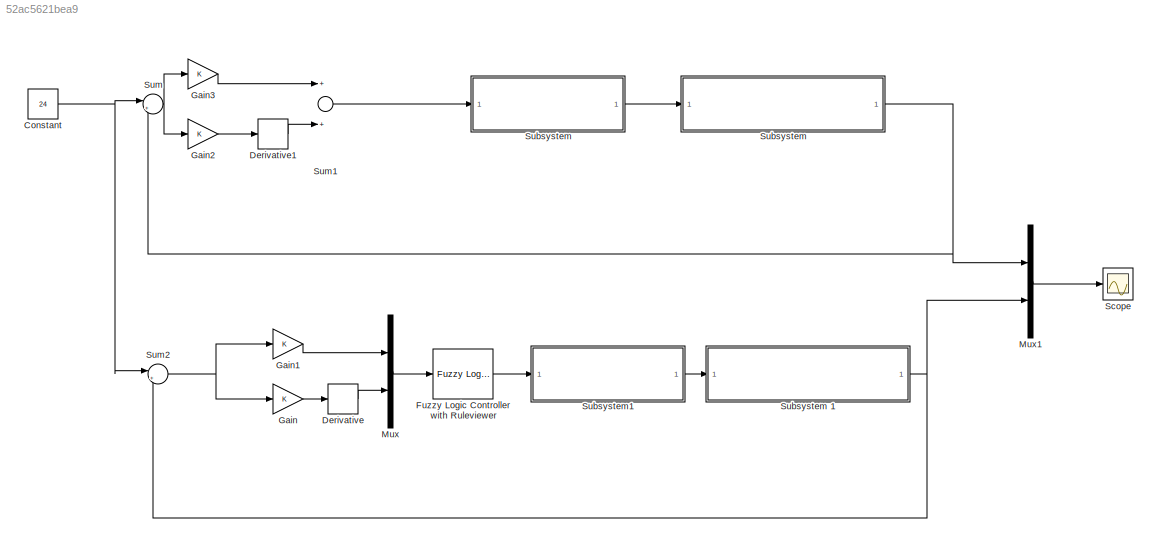
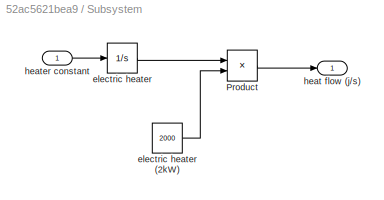
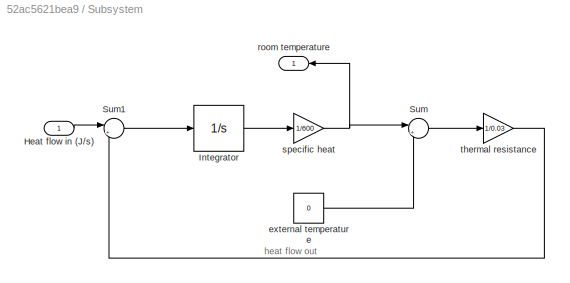
MODEL slx_52ac5621bea9
KIND model
CONFIG AbsTol = auto
CONFIG FixedStep = 1e-3
CONFIG MaxStep = auto
CONFIG MinStep = auto
CONFIG PreLoadFcn = room\n
CONFIG RelTol = 1e-3
CONFIG SampleTimeConstraint = Unconstrained
CONFIG Solver = ode3
CONFIG SolverMode = Auto
CONFIG SolverName = ode3
CONFIG StartTime = 0.0
CONFIG StopTime = 200
BLOCK [Constant] Constant
  Value = 24
BLOCK [Derivative] Derivative
BLOCK [Derivative] Derivative1
BLOCK [Reference] Fuzzy Logic Controller with Ruleviewer  REF=fuzblock/Fuzzy Logic   (lib defined in mdl_858b3b3e7478)
Controller 
with Ruleviewer
  Ports = [1, 1]
  SourceBlock = fuzblock/Fuzzy Logic \nController \nwith Ruleviewer
  SourceType = FIS
  Ts = 2
  fismatrix = room_heater1
BLOCK [Gain] Gain
  OutDataTypeStr = Inherit: Inherit via internal rule
  ParamDataTypeStr = Inherit: Inherit via internal rule
  SaturateOnIntegerOverflow = off
BLOCK [Gain] Gain1
  OutDataTypeStr = Inherit: Inherit via internal rule
  ParamDataTypeStr = Inherit: Inherit via internal rule
  SaturateOnIntegerOverflow = off
BLOCK [Gain] Gain2
  OutDataTypeStr = Inherit: Inherit via internal rule
  ParamDataTypeStr = Inherit: Inherit via internal rule
  SaturateOnIntegerOverflow = off
BLOCK [Gain] Gain3
  OutDataTypeStr = Inherit: Inherit via internal rule
  ParamDataTypeStr = Inherit: Inherit via internal rule
  SaturateOnIntegerOverflow = off
BLOCK [Mux] Mux
  DisplayOption = bar
  Inputs = 2
  Ports = [2, 1]
BLOCK [Mux] Mux1
  DisplayOption = bar
  Inputs = 2
  Ports = [2, 1]
BLOCK [Scope] Scope
  Floating = off
  LimitDataPoints = off
  NumInputPorts = 1
  Ports = [1]
  TimeRange = 50
  YMax = 30
  YMin = 0
BLOCK [SubSystem] Subsystem
  Ports = [1, 1]
  RequestExecContextInheritance = off
BLOCK [SubSystem] Subsystem 
  Ports = [1, 1]
  RequestExecContextInheritance = off
BLOCK [Inport] Subsystem /Heat flow in (J//s)
  IconDisplay = Port number
BLOCK [Integrator] Subsystem /Integrator
  Ports = [1, 1]
BLOCK [Sum] Subsystem /Sum
  IconShape = round
  InputSameDT = off
  Inputs = |+-
  OutDataTypeStr = Inherit: Inherit via internal rule
  Ports = [2, 1]
  SaturateOnIntegerOverflow = off
BLOCK [Sum] Subsystem /Sum1
  IconShape = round
  InputSameDT = off
  Inputs = |+-
  OutDataTypeStr = Inherit: Inherit via internal rule
  Ports = [2, 1]
  SaturateOnIntegerOverflow = off
BLOCK [Constant] Subsystem /external temperature  
  Value = 0
BLOCK [Outport] Subsystem /room temperature
  IconDisplay = Port number
BLOCK [Gain] Subsystem /specific heat 
  Gain = 1/600
  OutDataTypeStr = Inherit: Inherit via internal rule
  ParamDataTypeStr = Inherit: Inherit via internal rule
  SaturateOnIntegerOverflow = off
BLOCK [Gain] Subsystem /thermal resistance
  Gain = 1/0.03
  OutDataTypeStr = Inherit: Inherit via internal rule
  ParamDataTypeStr = Inherit: Inherit via internal rule
  SaturateOnIntegerOverflow = off
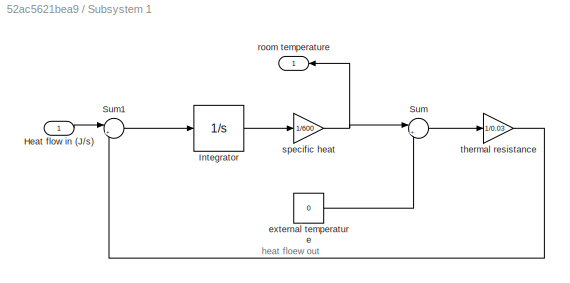
BLOCK [SubSystem] Subsystem 1
  Ports = [1, 1]
  RequestExecContextInheritance = off
BLOCK [Inport] Subsystem 1/Heat flow in (J//s)
  IconDisplay = Port number
BLOCK [Integrator] Subsystem 1/Integrator
  Ports = [1, 1]
BLOCK [Sum] Subsystem 1/Sum
  IconShape = round
  InputSameDT = off
  Inputs = |+-
  OutDataTypeStr = Inherit: Inherit via internal rule
  Ports = [2, 1]
  SaturateOnIntegerOverflow = off
BLOCK [Sum] Subsystem 1/Sum1
  IconShape = round
  InputSameDT = off
  Inputs = |+-
  OutDataTypeStr = Inherit: Inherit via internal rule
  Ports = [2, 1]
  SaturateOnIntegerOverflow = off
BLOCK [Constant] Subsystem 1/external temperature  
  Value = 0
BLOCK [Outport] Subsystem 1/room temperature
  IconDisplay = Port number
BLOCK [Gain] Subsystem 1/specific heat 
  Gain = 1/600
  OutDataTypeStr = Inherit: Inherit via internal rule
  ParamDataTypeStr = Inherit: Inherit via internal rule
  SaturateOnIntegerOverflow = off
BLOCK [Gain] Subsystem 1/thermal resistance
  Gain = 1/0.03
  OutDataTypeStr = Inherit: Inherit via internal rule
  ParamDataTypeStr = Inherit: Inherit via internal rule
  SaturateOnIntegerOverflow = off
BLOCK [Product] Subsystem/Product
  InputSameDT = off
  OutDataTypeStr = Inherit: Inherit via internal rule
  Ports = [2, 1]
  RndMeth = Floor
  SaturateOnIntegerOverflow = off
BLOCK [Integrator] Subsystem/electric heater 
  LimitOutput = on
  LowerSaturationLimit = 0
  Ports = [1, 1]
  UpperSaturationLimit = 1
BLOCK [Constant] Subsystem/electric heater (2kW)
  Value = 2000
BLOCK [Outport] Subsystem/heat flow (j//s)
  IconDisplay = Port number
BLOCK [Inport] Subsystem/heater constant 
  IconDisplay = Port number
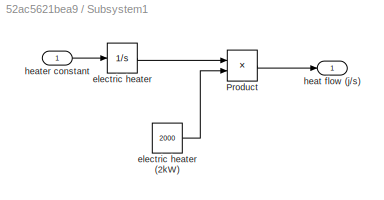
BLOCK [SubSystem] Subsystem1
  Ports = [1, 1]
  RequestExecContextInheritance = off
BLOCK [Product] Subsystem1/Product
  InputSameDT = off
  OutDataTypeStr = Inherit: Inherit via internal rule
  Ports = [2, 1]
  RndMeth = Floor
  SaturateOnIntegerOverflow = off
BLOCK [Integrator] Subsystem1/electric heater 
  LimitOutput = on
  LowerSaturationLimit = 0
  Ports = [1, 1]
  UpperSaturationLimit = 1
BLOCK [Constant] Subsystem1/electric heater (2kW)
  Value = 2000
BLOCK [Outport] Subsystem1/heat flow (j//s)
  IconDisplay = Port number
BLOCK [Inport] Subsystem1/heater constant 
  IconDisplay = Port number
BLOCK [Sum] Sum
  IconShape = round
  InputSameDT = off
  Inputs = |+-
  OutDataTypeStr = Inherit: Inherit via internal rule
  Ports = [2, 1]
  SaturateOnIntegerOverflow = off
BLOCK [Sum] Sum1
  InputSameDT = off
  OutDataTypeStr = Inherit: Inherit via internal rule
  Ports = [2, 1]
  SaturateOnIntegerOverflow = off
BLOCK [Sum] Sum2
  IconShape = round
  InputSameDT = off
  Inputs = |+-
  OutDataTypeStr = Inherit: Inherit via internal rule
  Ports = [2, 1]
  SaturateOnIntegerOverflow = off
ANNOTATION Subsystem : heat flow out
ANNOTATION Subsystem 1: heat floew out
NET Constant:1 -> Sum2:1, Sum:1
LINE Derivative1:1 -> Sum1:2
LINE Derivative:1 -> Mux:2
LINE Fuzzy Logic Controller with Ruleviewer:1 -> Subsystem1:1
LINE Gain1:1 -> Mux:1
LINE Gain2:1 -> Derivative1:1
LINE Gain3:1 -> Sum1:1
LINE Gain:1 -> Derivative:1
LINE Mux1:1 -> Scope:1
LINE Mux:1 -> Fuzzy Logic Controller with Ruleviewer:1
LINE Subsystem /Heat flow in (J//s):1 -> Subsystem /Sum1:1
LINE Subsystem /Integrator:1 -> Subsystem /specific heat :1
LINE Subsystem /Sum1:1 -> Subsystem /Integrator:1
LINE Subsystem /Sum:1 -> Subsystem /thermal resistance:1
LINE Subsystem /external temperature  :1 -> Subsystem /Sum:2
NET Subsystem /specific heat :1 -> Subsystem /Sum:1, Subsystem /room temperature:1
LINE Subsystem /thermal resistance:1 -> Subsystem /Sum1:2
LINE Subsystem 1/Heat flow in (J//s):1 -> Subsystem 1/Sum1:1
LINE Subsystem 1/Integrator:1 -> Subsystem 1/specific heat :1
LINE Subsystem 1/Sum1:1 -> Subsystem 1/Integrator:1
LINE Subsystem 1/Sum:1 -> Subsystem 1/thermal resistance:1
LINE Subsystem 1/external temperature  :1 -> Subsystem 1/Sum:2
NET Subsystem 1/specific heat :1 -> Subsystem 1/Sum:1, Subsystem 1/room temperature:1
LINE Subsystem 1/thermal resistance:1 -> Subsystem 1/Sum1:2
NET Subsystem 1:1 -> Mux1:2, Sum2:2
NET Subsystem :1 -> Mux1:1, Sum:2
LINE Subsystem/Product:1 -> Subsystem/heat flow (j//s):1
LINE Subsystem/electric heater (2kW):1 -> Subsystem/Product:2
LINE Subsystem/electric heater :1 -> Subsystem/Product:1
LINE Subsystem/heater constant :1 -> Subsystem/electric heater :1
LINE Subsystem1/Product:1 -> Subsystem1/heat flow (j//s):1
LINE Subsystem1/electric heater (2kW):1 -> Subsystem1/Product:2
LINE Subsystem1/electric heater :1 -> Subsystem1/Product:1
LINE Subsystem1/heater constant :1 -> Subsystem1/electric heater :1
LINE Subsystem1:1 -> Subsystem 1:1
LINE Subsystem:1 -> Subsystem :1
LINE Sum1:1 -> Subsystem:1
NET Sum2:1 -> Gain1:1, Gain:1
NET Sum:1 -> Gain2:1, Gain3:1
note: NET lines group one-source signal fan-out (src -> all destinations, sorted); 1:1 wires keep LINE
